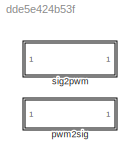
MODEL slx_dde5e424b53f
KIND library
CONFIG AbsTol = auto
CONFIG EnableMultiTasking = off
CONFIG FixedStep = auto
CONFIG MaxStep = auto
CONFIG MinStep = auto
CONFIG RelTol = 1e-3
CONFIG SampleTimeConstraint = Unconstrained
CONFIG Solver = VariableStepAuto
CONFIG SolverName = VariableStepAuto
CONFIG StartTime = 0.0
CONFIG StopTime = 10.0
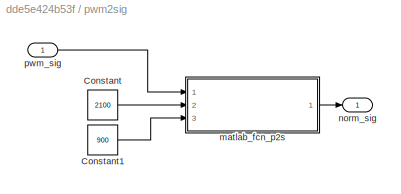
BLOCK [SubSystem] pwm2sig
  Ports = [1, 1]
  RequestExecContextInheritance = off
BLOCK [Constant] pwm2sig/Constant
  OutDataTypeStr = uint16
  Value = 2100
BLOCK [Constant] pwm2sig/Constant1
  OutDataTypeStr = uint16
  Value = 900
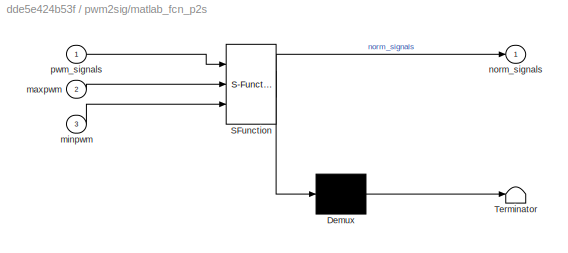
BLOCK [SubSystem] pwm2sig/matlab_fcn_p2s
  ErrorFcn = Stateflow.Translate.translate
  PermitHierarchicalResolution = ExplicitOnly
  Ports = [3, 1]
  RequestExecContextInheritance = off
  SFBlockType = MATLAB Function
  TreatAsAtomicUnit = on
BLOCK [Demux] pwm2sig/matlab_fcn_p2s/ Demux 
  Outputs = 1
  Ports = [1, 1]
BLOCK [S-Function] pwm2sig/matlab_fcn_p2s/ SFunction 
  EnableBusSupport = off
  FunctionName = sf_sfun
  PortCounts = [3 2]
  Ports = [3, 2]
  SFcnIsStateOwnerBlock = off
  SFunctionDeploymentMode = off
  Tag = Stateflow S-Function pwm_sig_converters 1
BLOCK [Terminator] pwm2sig/matlab_fcn_p2s/ Terminator 
BLOCK [Inport] pwm2sig/matlab_fcn_p2s/maxpwm
  IconDisplay = Port number
  Port = 2
BLOCK [Inport] pwm2sig/matlab_fcn_p2s/minpwm
  IconDisplay = Port number
  Port = 3
BLOCK [Outport] pwm2sig/matlab_fcn_p2s/norm_signals
  IconDisplay = Port number
BLOCK [Inport] pwm2sig/matlab_fcn_p2s/pwm_signals
  IconDisplay = Port number
BLOCK [Outport] pwm2sig/norm_sig
  IconDisplay = Port number
BLOCK [Inport] pwm2sig/pwm_sig
  IconDisplay = Port number
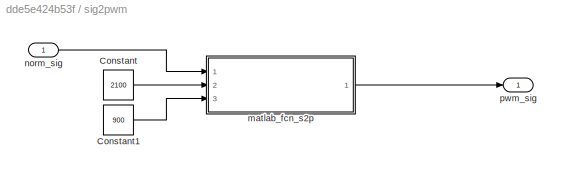
BLOCK [SubSystem] sig2pwm
  Ports = [1, 1]
  RequestExecContextInheritance = off
BLOCK [Constant] sig2pwm/Constant
  OutDataTypeStr = uint16
  Value = 2100
BLOCK [Constant] sig2pwm/Constant1
  OutDataTypeStr = uint16
  Value = 900
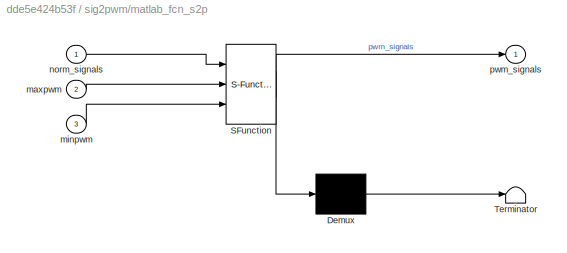
BLOCK [SubSystem] sig2pwm/matlab_fcn_s2p
  ErrorFcn = Stateflow.Translate.translate
  PermitHierarchicalResolution = ExplicitOnly
  Ports = [3, 1]
  RequestExecContextInheritance = off
  SFBlockType = MATLAB Function
  TreatAsAtomicUnit = on
BLOCK [Demux] sig2pwm/matlab_fcn_s2p/ Demux 
  Outputs = 1
  Ports = [1, 1]
BLOCK [S-Function] sig2pwm/matlab_fcn_s2p/ SFunction 
  EnableBusSupport = off
  FunctionName = sf_sfun
  PortCounts = [3 2]
  Ports = [3, 2]
  SFcnIsStateOwnerBlock = off
  SFunctionDeploymentMode = off
  Tag = Stateflow S-Function pwm_sig_converters 2
BLOCK [Terminator] sig2pwm/matlab_fcn_s2p/ Terminator 
BLOCK [Inport] sig2pwm/matlab_fcn_s2p/maxpwm
  IconDisplay = Port number
  Port = 2
BLOCK [Inport] sig2pwm/matlab_fcn_s2p/minpwm
  IconDisplay = Port number
  Port = 3
BLOCK [Inport] sig2pwm/matlab_fcn_s2p/norm_signals
  IconDisplay = Port number
BLOCK [Outport] sig2pwm/matlab_fcn_s2p/pwm_signals
  IconDisplay = Port number
BLOCK [Inport] sig2pwm/norm_sig
  IconDisplay = Port number
BLOCK [Outport] sig2pwm/pwm_sig
  IconDisplay = Port number
LINE pwm2sig/Constant1:1 -> pwm2sig/matlab_fcn_p2s:3
LINE pwm2sig/Constant:1 -> pwm2sig/matlab_fcn_p2s:2
LINE pwm2sig/matlab_fcn_p2s:1 -> pwm2sig/norm_sig:1
LINE pwm2sig/pwm_sig:1 -> pwm2sig/matlab_fcn_p2s:1
LINE sig2pwm/Constant1:1 -> sig2pwm/matlab_fcn_s2p:3
LINE sig2pwm/Constant:1 -> sig2pwm/matlab_fcn_s2p:2
LINE sig2pwm/matlab_fcn_s2p:1 -> sig2pwm/pwm_sig:1
LINE sig2pwm/norm_sig:1 -> sig2pwm/matlab_fcn_s2p:1
CHART pwm2sig/matlab_fcn_p2s states=1 transitions=1
  STATE_LABEL 'eML_blk_kernel()'
  STATE_LABEL 'SCRIPT:\nfunction norm_signals = pwm2signal(pwm_signals, maxpwm, minpwm)\n\ny = single(pwm_signals);\n\ntop =   uint16(maxpwm);\nbot =   uint16(minpwm);\nmid =   uint16((single(top)+single(bot))/2);\nrange = uint16( (single(top)-single(bot))/2 );\n\ny = (y - single(mid))./(single(range)); \n\nnorm_signals = y;'
CHART sig2pwm/matlab_fcn_s2p states=1 transitions=1
  STATE_LABEL 'eML_blk_kernel()'
  STATE_LABEL 'SCRIPT:\nfunction pwm_signals = signal2pwm(norm_signals, maxpwm, minpwm)\n\npwm_signals = uint16(zeros(size(norm_signals))); % y is hard set to uint16\n\n\ntop =   uint16(maxpwm);\nbot =   uint16(minpwm);\nmid =   uint16((single(top)+single(bot))/2);\nrange = uint16( (single(top)-single(bot))/2 );\n\n% Range is ~1000-2000, ie +-500, but in is +-1\nnorm_signals = norm_signals.*single(range) + single(mid);\npwm_...<+31ch>'
